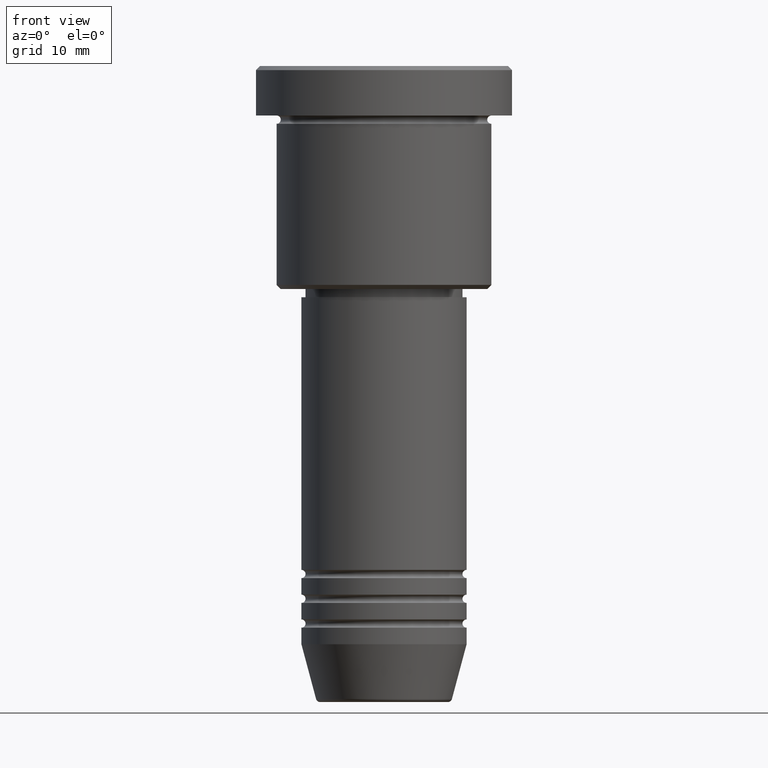
[diagram: clean part render]
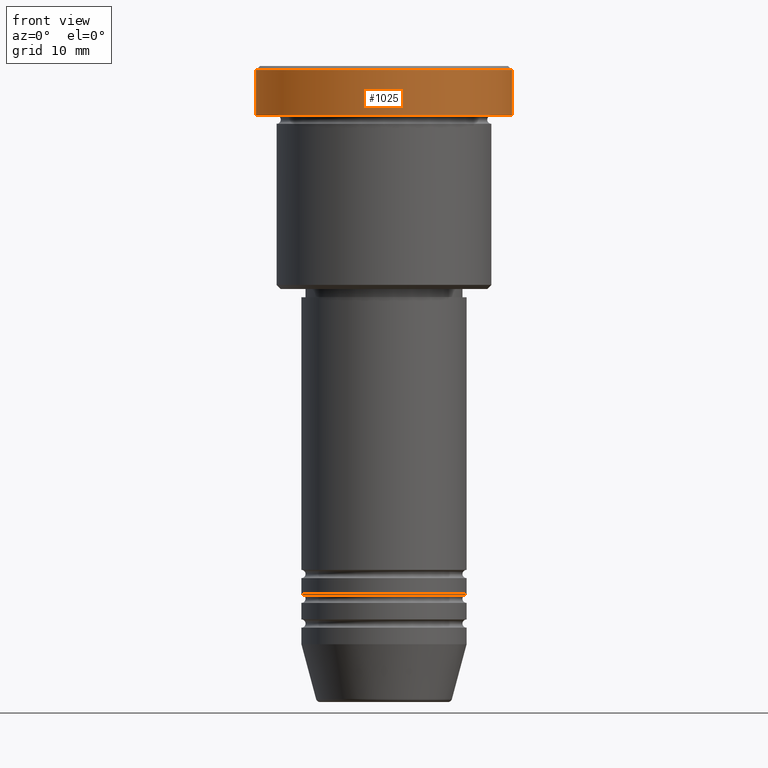
[diagram: same view with one face highlighted and labeled with its STEP entity id]
A machine part, front view. The second image highlights one B-rep face of the part: STEP entity #1025.
In plain terms, the highlighted cylindrical surface (partial cylindrical patch) has radius 15.5 mm, axis along (-0, -0, 1).
Its self-contained STEP definition (entity closure, byte-faithful):
#68 = VECTOR ( 'NONE', #592, 1000.000000000000000 ) ;
#75 = EDGE_LOOP ( 'NONE', ( #900, #641, #884, #639 ) ) ;
#85 = CARTESIAN_POINT ( 'NONE',  ( 0.000000000000000000, 0.000000000000000000, -0.4999999999999987232 ) ) ;
#192 = EDGE_CURVE ( 'NONE', #551, #955, #990, .T. ) ;
#258 = FACE_OUTER_BOUND ( 'NONE', #75, .T. ) ;
#275 = EDGE_CURVE ( 'NONE', #955, #389, #702, .T. ) ;
#291 = EDGE_CURVE ( 'NONE', #1120, #389, #486, .T. ) ;
#314 = CARTESIAN_POINT ( 'NONE',  ( -15.50000000000000000, 1.898202538678397557E-15, 0.000000000000000000 ) ) ;
#316 = DIRECTION ( 'NONE',  ( 1.000000000000000000, 0.000000000000000000, 0.000000000000000000 ) ) ;
#317 = AXIS2_PLACEMENT_3D ( 'NONE', #416, #487, #316 ) ;
#389 = VERTEX_POINT ( 'NONE', #773 ) ;
#402 = VECTOR ( 'NONE', #418, 1000.000000000000000 ) ;
#404 = CIRCLE ( 'NONE', #317, 15.50000000000000000 ) ;
#416 = CARTESIAN_POINT ( 'NONE',  ( 0.000000000000000000, 0.000000000000000000, -5.999999999999995559 ) ) ;
#418 = DIRECTION ( 'NONE',  ( -0.000000000000000000, -0.000000000000000000, 1.000000000000000000 ) ) ;
#443 = DIRECTION ( 'NONE',  ( 0.000000000000000000, 0.000000000000000000, -1.000000000000000000 ) ) ;
#449 = DIRECTION ( 'NONE',  ( 1.000000000000000000, 0.000000000000000000, 0.000000000000000000 ) ) ;
#486 = LINE ( 'NONE', #314, #68 ) ;
#487 = DIRECTION ( 'NONE',  ( -0.000000000000000000, -0.000000000000000000, 1.000000000000000000 ) ) ;
#516 = EDGE_CURVE ( 'NONE', #1120, #551, #404, .T. ) ;
#517 = CYLINDRICAL_SURFACE ( 'NONE', #1145, 15.50000000000000000 ) ;
#551 = VERTEX_POINT ( 'NONE', #768 ) ;
#592 = DIRECTION ( 'NONE',  ( -0.000000000000000000, -0.000000000000000000, 1.000000000000000000 ) ) ;
#639 = ORIENTED_EDGE ( 'NONE', *, *, #275, .T. ) ;
#641 = ORIENTED_EDGE ( 'NONE', *, *, #516, .T. ) ;
#694 = CARTESIAN_POINT ( 'NONE',  ( 15.50000000000000000, 0.000000000000000000, -0.4999999999999987232 ) ) ;
#702 = CIRCLE ( 'NONE', #1111, 15.50000000000000000 ) ;
#729 = CARTESIAN_POINT ( 'NONE',  ( 0.000000000000000000, 0.000000000000000000, 0.000000000000000000 ) ) ;
#768 = CARTESIAN_POINT ( 'NONE',  ( 15.50000000000000000, 0.000000000000000000, -5.999999999999995559 ) ) ;
#773 = CARTESIAN_POINT ( 'NONE',  ( -15.50000000000000000, 1.898202538678397557E-15, -0.4999999999999987232 ) ) ;
#884 = ORIENTED_EDGE ( 'NONE', *, *, #192, .T. ) ;
#900 = ORIENTED_EDGE ( 'NONE', *, *, #291, .F. ) ;
#955 = VERTEX_POINT ( 'NONE', #694 ) ;
#975 = CARTESIAN_POINT ( 'NONE',  ( 15.50000000000000000, 0.000000000000000000, 0.000000000000000000 ) ) ;
#990 = LINE ( 'NONE', #975, #402 ) ;
#994 = DIRECTION ( 'NONE',  ( 1.000000000000000000, 0.000000000000000000, 0.000000000000000000 ) ) ;
#1025 = ADVANCED_FACE ( 'NONE', ( #258 ), #517, .T. ) ;
#1085 = CARTESIAN_POINT ( 'NONE',  ( -15.50000000000000000, 1.898202538678397557E-15, -5.999999999999995559 ) ) ;
#1111 = AXIS2_PLACEMENT_3D ( 'NONE', #85, #443, #449 ) ;
#1120 = VERTEX_POINT ( 'NONE', #1085 ) ;
#1145 = AXIS2_PLACEMENT_3D ( 'NONE', #729, #1178, #994 ) ;
#1178 = DIRECTION ( 'NONE',  ( -0.000000000000000000, -0.000000000000000000, 1.000000000000000000 ) ) ;